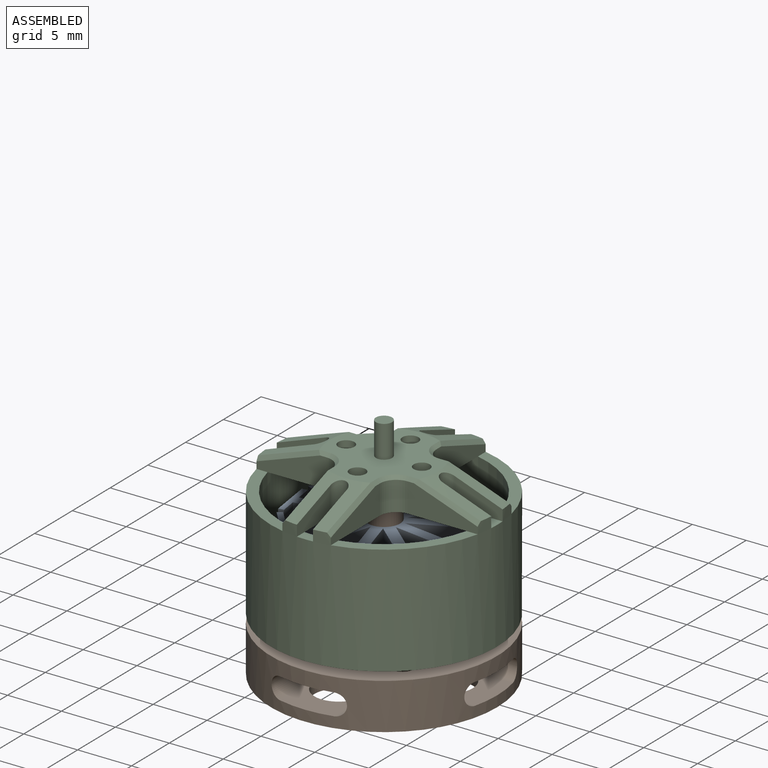
[diagram: assembled view]
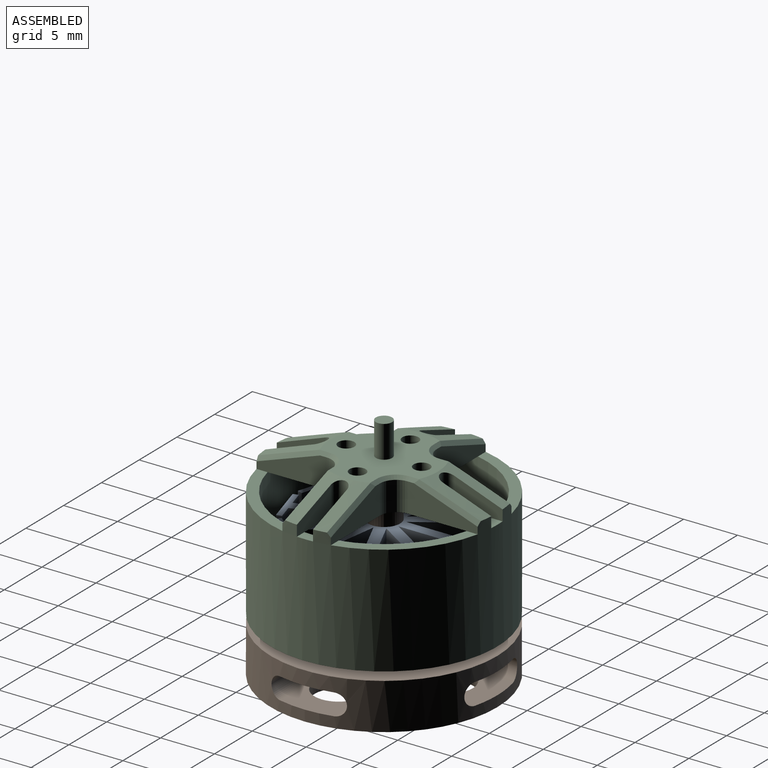
[diagram: assembled view, second angle]
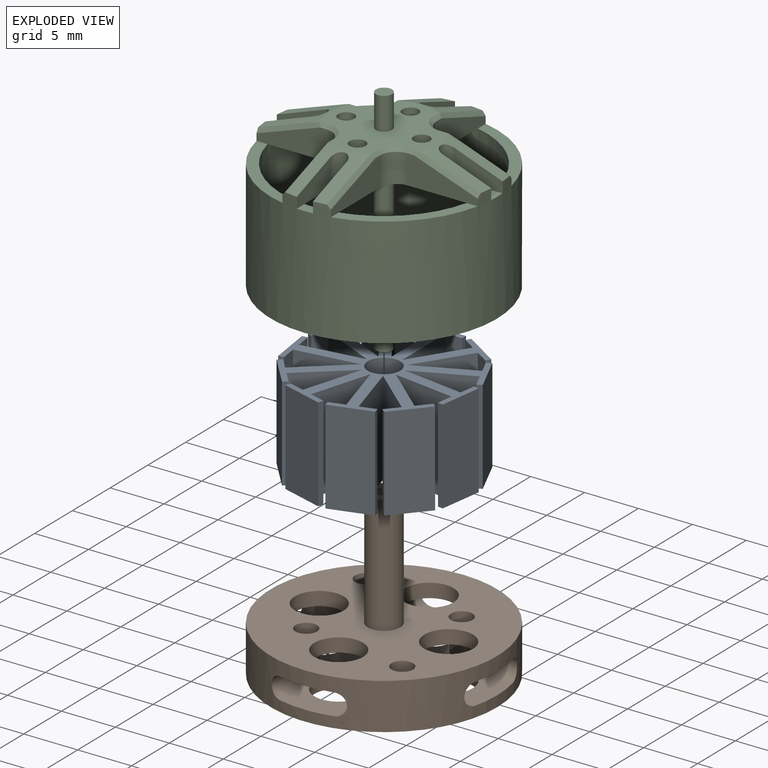
[diagram: exploded view]
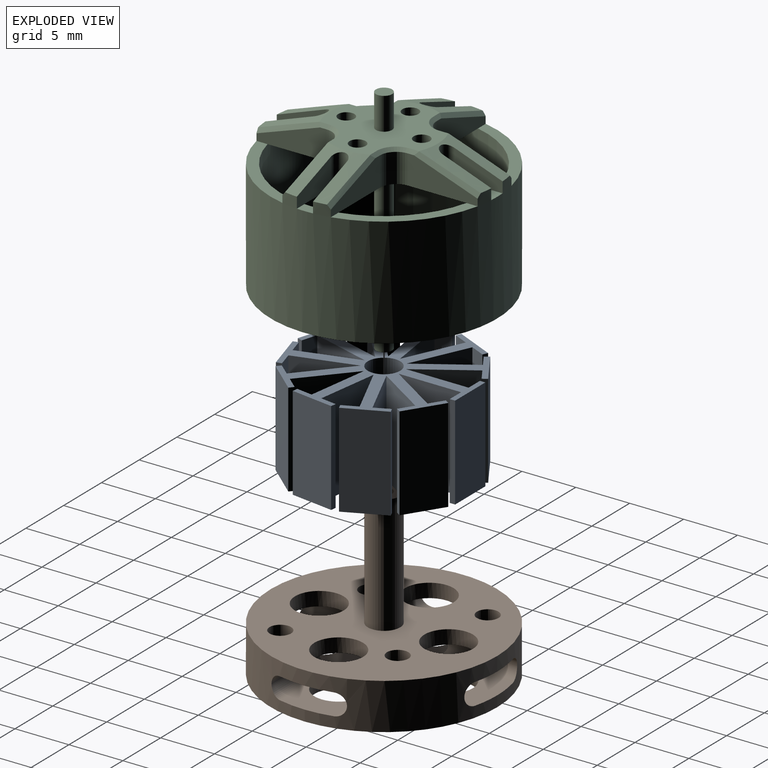
[diagram: exploded view, second angle]
ASSEMBLY  parts=3 mates=2
PART A: 80 faces, bbox 16.4x16.2x8.7 mm
  f0: plane 16.41x16.24mm, normal (0,0,-1), area 88.1mm2, adj f1,f2,f3,f4,f5,f6,f7,f8
  f1: plane 8.71x4mm, normal (0,1,0), area 34.8mm2, adj f0,f2,f77,f78
  f2: plane 8.71x0.5mm, normal (-1,0,0), area 4.4mm2, adj f0,f1,f3,f78
  f3: plane 8.71x1.5mm, normal (0,-1,0), area 13.1mm2, adj f0,f2,f4,f78
  f4: plane 8.71x5.8mm, normal (-1,0,0), area 50.5mm2, adj f0,f3,f5,f78
  f5: plane 8.71x4.88mm, normal (0.84,0.54,0), area 50.5mm2, adj f0,f4,f6,f78
  f6: plane 8.71x1.26mm, normal (0.54,-0.84,0), area 13.1mm2, adj f0,f5,f7,f78
  f7: plane 8.71x0.42mm, normal (0.84,0.54,0), area 4.4mm2, adj f0,f6,f8,f78
  f8: plane 8.71x3.37mm, normal (-0.54,0.84,0), area 34.8mm2, adj f0,f7,f9,f78
  f9: plane 8.71x0.42mm, normal (-0.84,-0.54,0), area 4.4mm2, adj f0,f8,f10,f78
  f10: plane 8.71x1.26mm, normal (0.54,-0.84,0), area 13.1mm2, adj f0,f9,f11,f78
  f11: plane 8.71x4.88mm, normal (-0.84,-0.54,0), area 50.5mm2, adj f0,f10,f12,f78
  f12: plane 8.71x5.27mm, normal (0.42,0.91,0), area 50.5mm2, adj f0,f11,f13,f78
  f13: plane 8.71x1.36mm, normal (0.91,-0.42,0), area 13.1mm2, adj f0,f12,f14,f78
  f14: plane 8.71x0.46mm, normal (0.42,0.91,0), area 4.4mm2, adj f0,f13,f15,f78
  f15: plane 8.71x3.64mm, normal (-0.91,0.42,0), area 34.8mm2, adj f0,f14,f16,f78
  f16: plane 8.71x0.46mm, normal (-0.42,-0.91,0), area 4.4mm2, adj f0,f15,f17,f78
  f17: plane 8.71x1.36mm, normal (0.91,-0.42,0), area 13.1mm2, adj f0,f16,f18,f78
  f18: plane 8.71x5.27mm, normal (-0.42,-0.91,0), area 50.5mm2, adj f0,f17,f19,f78
  f19: plane 8.71x5.74mm, normal (-0.14,0.99,0), area 50.5mm2, adj f0,f18,f20,f78
  f20: plane 8.71x1.48mm, normal (0.99,0.14,0), area 13.1mm2, adj f0,f19,f21,f78
  f21: plane 8.71x0.5mm, normal (-0.14,0.99,0), area 4.4mm2, adj f0,f20,f22,f78
  f22: plane 8.71x3.96mm, normal (-0.99,-0.14,0), area 34.8mm2, adj f0,f21,f23,f78
  f23: plane 8.71x0.5mm, normal (0.14,-0.99,0), area 4.4mm2, adj f0,f22,f24,f78
  f24: plane 8.71x1.48mm, normal (0.99,0.14,0), area 13.1mm2, adj f0,f23,f25,f78
  f25: plane 8.71x5.74mm, normal (0.14,-0.99,0), area 50.5mm2, adj f0,f24,f26,f78
  f26: plane 8.71x4.38mm, normal (-0.65,0.76,0), area 50.5mm2, adj f0,f25,f27,f78
  f27: plane 8.71x1.13mm, normal (0.76,0.65,0), area 13.1mm2, adj f0,f26,f28,f78
  f28: plane 8.71x0.38mm, normal (-0.65,0.76,0), area 4.4mm2, adj f0,f27,f29,f78
  f29: plane 8.71x3.02mm, normal (-0.76,-0.65,0), area 34.8mm2, adj f0,f28,f30,f78
  f30: plane 8.71x0.38mm, normal (0.65,-0.76,0), area 4.4mm2, adj f0,f29,f31,f78
  f31: plane 8.71x1.13mm, normal (0.76,0.65,0), area 13.1mm2, adj f0,f30,f32,f78
  f32: plane 8.71x4.38mm, normal (0.65,-0.76,0), area 50.5mm2, adj f0,f31,f33,f78
  f33: plane 8.71x5.56mm, normal (-0.96,0.28,0), area 50.5mm2, adj f0,f32,f34,f78
  f34: plane 8.71x1.44mm, normal (0.28,0.96,0), area 13.1mm2, adj f0,f33,f35,f78
  f35: plane 8.71x0.48mm, normal (-0.96,0.28,0), area 4.4mm2, adj f0,f34,f36,f78
  f36: plane 8.71x3.84mm, normal (-0.28,-0.96,0), area 34.8mm2, adj f0,f35,f37,f78
  f37: plane 8.71x0.48mm, normal (0.96,-0.28,0), area 4.4mm2, adj f0,f36,f38,f78
  f38: plane 8.71x1.44mm, normal (0.28,0.96,0), area 13.1mm2, adj f0,f37,f39,f78
  f39: plane 8.71x5.56mm, normal (0.96,-0.28,0), area 50.5mm2, adj f0,f38,f40,f78
  f40: plane 8.71x5.56mm, normal (-0.96,-0.28,0), area 50.5mm2, adj f0,f39,f41,f78
  f41: plane 8.71x1.44mm, normal (-0.28,0.96,0), area 13.1mm2, adj f0,f40,f42,f78
  f42: plane 8.71x0.48mm, normal (-0.96,-0.28,0), area 4.4mm2, adj f0,f41,f43,f78
  f43: plane 8.71x3.84mm, normal (0.28,-0.96,0), area 34.8mm2, adj f0,f42,f44,f78
  f44: plane 8.71x0.48mm, normal (0.96,0.28,0), area 4.4mm2, adj f0,f43,f45,f78
  f45: plane 8.71x1.44mm, normal (-0.28,0.96,0), area 13.1mm2, adj f0,f44,f46,f78
  f46: plane 8.71x5.56mm, normal (0.96,0.28,0), area 50.5mm2, adj f0,f45,f47,f78
  f47: plane 8.71x4.38mm, normal (-0.65,-0.76,0), area 50.5mm2, adj f0,f46,f48,f78
  f48: plane 8.71x1.13mm, normal (-0.76,0.65,0), area 13.1mm2, adj f0,f47,f49,f78
  f49: plane 8.71x0.38mm, normal (-0.65,-0.76,0), area 4.4mm2, adj f0,f48,f50,f78
  f50: plane 8.71x3.02mm, normal (0.76,-0.65,0), area 34.8mm2, adj f0,f49,f51,f78
  f51: plane 8.71x0.38mm, normal (0.65,0.76,0), area 4.4mm2, adj f0,f50,f52,f78
  f52: plane 8.71x1.13mm, normal (-0.76,0.65,0), area 13.1mm2, adj f0,f51,f53,f78
  f53: plane 8.71x4.38mm, normal (0.65,0.76,0), area 50.5mm2, adj f0,f52,f54,f78
  f54: plane 8.71x5.74mm, normal (-0.14,-0.99,0), area 50.5mm2, adj f0,f53,f55,f78
  f55: plane 8.71x1.48mm, normal (-0.99,0.14,0), area 13.1mm2, adj f0,f54,f56,f78
  f56: plane 8.71x0.5mm, normal (-0.14,-0.99,0), area 4.4mm2, adj f0,f55,f57,f78
  f57: plane 8.71x3.96mm, normal (0.99,-0.14,0), area 34.8mm2, adj f0,f56,f58,f78
  f58: plane 8.71x0.5mm, normal (0.14,0.99,0), area 4.4mm2, adj f0,f57,f59,f78
  f59: plane 8.71x1.48mm, normal (-0.99,0.14,0), area 13.1mm2, adj f0,f58,f60,f78
  f60: plane 8.71x5.74mm, normal (0.14,0.99,0), area 50.5mm2, adj f0,f59,f61,f78
  f61: plane 8.71x5.27mm, normal (0.42,-0.91,0), area 50.5mm2, adj f0,f60,f62,f78
  f62: plane 8.71x1.36mm, normal (-0.91,-0.42,0), area 13.1mm2, adj f0,f61,f63,f78
  f63: plane 8.71x0.46mm, normal (0.42,-0.91,0), area 4.4mm2, adj f0,f62,f64,f78
  f64: plane 8.71x3.64mm, normal (0.91,0.42,0), area 34.8mm2, adj f0,f63,f65,f78
  f65: plane 8.71x0.46mm, normal (-0.42,0.91,0), area 4.4mm2, adj f0,f64,f66,f78
  f66: plane 8.71x1.36mm, normal (-0.91,-0.42,0), area 13.1mm2, adj f0,f65,f67,f78
  f67: plane 8.71x5.27mm, normal (-0.42,0.91,0), area 50.5mm2, adj f0,f66,f68,f78
  f68: plane 8.71x4.88mm, normal (0.84,-0.54,0), area 50.5mm2, adj f0,f67,f69,f78
  f69: plane 8.71x1.26mm, normal (-0.54,-0.84,0), area 13.1mm2, adj f0,f68,f70,f78
  f70: plane 8.71x0.42mm, normal (0.84,-0.54,0), area 4.4mm2, adj f0,f69,f71,f78
  f71: plane 8.71x3.37mm, normal (0.54,0.84,0), area 34.8mm2, adj f0,f70,f72,f78
  f72: plane 8.71x0.42mm, normal (-0.84,0.54,0), area 4.4mm2, adj f0,f71,f73,f78
  f73: plane 8.71x1.26mm, normal (-0.54,-0.84,0), area 13.1mm2, adj f0,f72,f74,f78
  f74: plane 8.71x4.88mm, normal (-0.84,0.54,0), area 50.5mm2, adj f0,f73,f75,f78
  f75: plane 8.71x5.8mm, normal (1,0,0), area 50.5mm2, adj f0,f74,f76,f78
  f76: plane 8.71x1.5mm, normal (0,-1,0), area 13.1mm2, adj f0,f75,f77,f78
  f77: plane 8.71x0.5mm, normal (1,0,0), area 4.4mm2, adj f0,f1,f76,f78
  f78: plane 16.41x16.24mm, normal (0,0,1), area 88.1mm2, adj f1,f2,f3,f4,f5,f6,f7,f8
  f79: cylinder r=1.5mm len=8.71mm, axis (0,0,1), area 82.1mm2, adj f0,f78
PART B: 29 faces, bbox 21x21x15.3 mm
  f0: plane 3x3mm, normal (0,0,1), area 5.3mm2, adj f26,f28
  f1: plane 21x21mm, normal (0,0,1), area 263.1mm2, adj f13,f14,f16,f17,f19,f21,f23,f24
  f2: cylinder r=1mm len=7.7mm, axis (1,0,0), area 20mm2, adj f6,f9,f11,f13,f16
  f3: cylinder r=1mm len=7.7mm, axis (1,0,0), area 21.6mm2, adj f7,f9,f11,f13
  f4: plane 21x21mm, normal (0,0,-1), area 268.4mm2, adj f13,f15,f16,f18,f20,f22,f23,f24
  f5: cylinder r=1mm len=7.7mm, axis (0,1,0), area 21.6mm2, adj f9,f11,f12,f13
  f6: cylinder r=1mm len=7.7mm, axis (0,1,0), area 20mm2, adj f2,f9,f11,f13,f16
  f7: cylinder r=1mm len=7.7mm, axis (0,1,0), area 21.6mm2, adj f3,f9,f11,f13
  f8: cylinder r=1mm len=7.7mm, axis (0,1,0), area 20mm2, adj f9,f10,f11,f13,f24
  f9: plane 21x21mm, normal (0,0,1), area 117.6mm2, adj f2,f3,f5,f6,f7,f8,f10,f12
  f10: cylinder r=1mm len=7.7mm, axis (1,0,0), area 20mm2, adj f8,f9,f11,f13,f24
  f11: plane 21x21mm, normal (0,0,-1), area 117.6mm2, adj f2,f3,f5,f6,f7,f8,f10,f12
  f12: cylinder r=1mm len=7.7mm, axis (1,0,0), area 21.6mm2, adj f5,f9,f11,f13
  f13: cylinder r=10.5mm len=21mm, axis (0,0,-1), area 229.7mm2, adj f1,f2,f3,f4,f5,f6,f7,f8
  f14: cylinder r=2.25mm len=4.5mm, axis (0,0,-1), area 18.3mm2, adj f1,f11
  f15: cylinder r=2.25mm len=4.5mm, axis (0,0,-1), area 14.1mm2, adj f4,f9
  f16: cylinder r=1mm len=4.29mm, axis (0,0,-1), area 23.8mm2, adj f1,f2,f4,f6
  f17: cylinder r=2.25mm len=4.5mm, axis (0,0,-1), area 18.3mm2, adj f1,f11
  f18: cylinder r=2.25mm len=4.5mm, axis (0,0,-1), area 14.1mm2, adj f4,f9
  f19: cylinder r=2.25mm len=4.5mm, axis (0,0,-1), area 18.3mm2, adj f1,f11
  f20: cylinder r=2.25mm len=4.5mm, axis (0,0,-1), area 14.1mm2, adj f4,f9
  f21: cylinder r=2.25mm len=4.5mm, axis (0,0,-1), area 18.3mm2, adj f1,f11
  f22: cylinder r=2.25mm len=4.5mm, axis (0,0,-1), area 14.1mm2, adj f4,f9
  f23: cylinder r=1mm len=4.29mm, axis (0,0,-1), area 27mm2, adj f1,f4
  f24: cylinder r=1mm len=4.29mm, axis (0,0,-1), area 23.8mm2, adj f1,f4,f8,f10
  f25: cylinder r=1mm len=4.29mm, axis (0,0,-1), area 27mm2, adj f1,f4
  f26: cylinder r=0.75mm len=12.29mm, axis (0,0,1), area 57.9mm2, adj f0,f11
  f27: cylinder r=0.75mm len=1.5mm, axis (0,0,1), area 4.7mm2, adj f4,f9
  f28: cylinder r=1.5mm len=11mm, axis (0,0,1), area 103.7mm2, adj f0,f1
PART C: 69 faces, bbox 21.4x21.4x21.6 mm
  f0: plane 18.94x18.94mm, normal (0,0,-1), area 117.8mm2, adj f7,f8,f9,f11,f12,f13,f14,f15
  f1: plane 8.01x8.01mm, normal (0,0,1), area 11.2mm2, adj f3,f12,f13,f66
  f2: plane 1.5x1.03mm, normal (0,0,1), area 1.5mm2, adj f3,f31,f32,f66
  f3: cylinder r=10.5mm len=21mm, axis (0,0,-1), area 685.1mm2, adj f1,f2,f7,f8,f10,f12,f13,f15
  f4: plane 10.01x10.01mm, normal (0,0,1), area 54.8mm2, adj f5,f22,f38,f39,f40,f41,f42,f43
  f5: cylinder r=0.75mm len=3mm, axis (0,0,-1), area 14.1mm2, adj f4,f6
  f6: plane 1.5x1.5mm, normal (0,0,1), area 1.8mm2, adj f5
  f7: plane 6.61x2.8mm, normal (0,1,0), area 11.5mm2, adj f0,f3,f9,f10,f63,f64
  f8: plane 6.61x2.8mm, normal (-1,0,0), area 11.6mm2, adj f0,f3,f9,f10,f60,f61
  f9: cylinder r=1.5mm len=2.7mm, axis (0,0,1), area 6.4mm2, adj f0,f7,f8,f62
  f10: plane 8.01x8.01mm, normal (0,0,1), area 11.2mm2, adj f3,f7,f8,f66
  f11: cylinder r=1.5mm len=2.7mm, axis (0,0,1), area 6.4mm2, adj f0,f12,f13,f47
  f12: plane 6.61x2.8mm, normal (1,0,0), area 11.5mm2, adj f0,f1,f3,f11,f48,f49
  f13: plane 6.61x2.8mm, normal (0,1,0), area 11.6mm2, adj f0,f1,f3,f11,f45,f46
  f14: cylinder r=1.5mm len=2.7mm, axis (0,0,1), area 6.4mm2, adj f0,f15,f16,f52
  f15: plane 6.61x2.8mm, normal (0,-1,0), area 11.5mm2, adj f0,f3,f14,f17,f53,f54
  f16: plane 6.61x2.8mm, normal (1,0,0), area 11.6mm2, adj f0,f3,f14,f17,f50,f51
  f17: plane 8.01x8.01mm, normal (0,0,1), area 11.2mm2, adj f3,f15,f16,f66
  f18: cylinder r=1.5mm len=2.7mm, axis (0,0,1), area 6.4mm2, adj f0,f19,f20,f57
  f19: plane 6.61x2.8mm, normal (-1,0,0), area 11.5mm2, adj f0,f3,f18,f21,f58,f59
  f20: plane 6.61x2.8mm, normal (0,-1,0), area 11.6mm2, adj f0,f3,f18,f21,f55,f56
  f21: plane 8.01x8.01mm, normal (0,0,1), area 11.2mm2, adj f3,f19,f20,f66
  f22: cylinder r=0.75mm len=3mm, axis (0,0,1), area 14.1mm2, adj f0,f4
  f23: plane 4.47x2.62mm, normal (1,0,0), area 8.1mm2, adj f0,f3,f25,f26,f43
  f24: plane 4.47x2.62mm, normal (-1,0,0), area 8.1mm2, adj f0,f3,f25,f26,f43
  f25: cylinder r=0.75mm len=2.62mm, axis (0,0,1), area 6.2mm2, adj f0,f23,f24,f43
  f26: plane 1.5x1.03mm, normal (0,0,1), area 1.5mm2, adj f3,f23,f24,f66
  f27: plane 4.47x2.62mm, normal (0,-1,0), area 8.1mm2, adj f0,f3,f29,f30,f44
  f28: plane 4.47x2.62mm, normal (0,1,0), area 8.1mm2, adj f0,f3,f29,f30,f44
  f29: cylinder r=0.75mm len=2.62mm, axis (0,0,1), area 6.2mm2, adj f0,f27,f28,f44
  f30: plane 1.5x1.03mm, normal (0,0,1), area 1.5mm2, adj f3,f27,f28,f66
  f31: plane 4.47x2.62mm, normal (0,1,0), area 8.1mm2, adj f0,f2,f3,f33,f42
  f32: plane 4.47x2.62mm, normal (0,-1,0), area 8.1mm2, adj f0,f2,f3,f33,f42
  f33: cylinder r=0.75mm len=2.62mm, axis (0,0,1), area 6.2mm2, adj f0,f31,f32,f42
  f34: plane 4.47x2.62mm, normal (-1,0,0), area 8.1mm2, adj f0,f3,f36,f37,f41
  f35: plane 4.47x2.62mm, normal (1,0,0), area 8.1mm2, adj f0,f3,f36,f37,f41
  f36: cylinder r=0.75mm len=2.62mm, axis (0,0,1), area 6.2mm2, adj f0,f34,f35,f41
  f37: plane 1.5x1.03mm, normal (0,0,1), area 1.5mm2, adj f3,f34,f35,f66
  f38: cylinder r=0.75mm len=3mm, axis (0,0,1), area 14.1mm2, adj f0,f4
  f39: cylinder r=0.75mm len=3mm, axis (0,0,1), area 14.1mm2, adj f0,f4
  f40: cylinder r=0.75mm len=3mm, axis (0,0,1), area 14.1mm2, adj f0,f4
  f41: cone r=5.01mm half-angle=70deg, axis (0,0,-1), area 15mm2, adj f3,f4,f34,f35,f36,f50,f51,f58
  f42: cone r=5.01mm half-angle=70deg, axis (0,0,-1), area 15mm2, adj f3,f4,f31,f32,f33,f55,f56,f63
  f43: cone r=5.01mm half-angle=70deg, axis (0,0,-1), area 15mm2, adj f3,f4,f23,f24,f25,f48,f49,f60
  f44: cone r=5.01mm half-angle=70deg, axis (0,0,-1), area 15mm2, adj f3,f4,f27,f28,f29,f45,f46,f53
  f45: bspline ~6.62x2.61mm, area 2.9mm2, adj f3,f13,f44,f46
  f46: plane 0.9x0.31mm, normal (0,0.71,0.71), area 0.3mm2, adj f4,f13,f44,f45,f47
  f47: cone r=1.8mm half-angle=45deg, axis (0,0,1), area 1.1mm2, adj f4,f11,f46,f48
  f48: plane 0.9x0.31mm, normal (0.71,0,0.71), area 0.3mm2, adj f4,f12,f43,f47,f49
  f49: bspline ~6.03x2.41mm, area 2.9mm2, adj f3,f12,f43,f48
  f50: bspline ~6.62x2.61mm, area 2.9mm2, adj f3,f16,f41,f51
  f51: plane 0.9x0.31mm, normal (0.71,0,0.71), area 0.3mm2, adj f4,f16,f41,f50,f52
  f52: cone r=1.8mm half-angle=45deg, axis (0,0,1), area 1.1mm2, adj f4,f14,f51,f53
  f53: plane 0.9x0.31mm, normal (0,-0.71,0.71), area 0.3mm2, adj f4,f15,f44,f52,f54
  f54: bspline ~6.03x2.41mm, area 2.9mm2, adj f3,f15,f44,f53
  f55: bspline ~6.62x2.61mm, area 2.9mm2, adj f3,f20,f42,f56
  f56: plane 0.9x0.31mm, normal (0,-0.71,0.71), area 0.3mm2, adj f4,f20,f42,f55,f57
  f57: cone r=1.8mm half-angle=45deg, axis (0,0,1), area 1.1mm2, adj f4,f18,f56,f58
  f58: plane 0.9x0.31mm, normal (-0.71,0,0.71), area 0.3mm2, adj f4,f19,f41,f57,f59
  f59: bspline ~6.03x2.41mm, area 2.9mm2, adj f3,f19,f41,f58
  f60: bspline ~6.62x2.61mm, area 2.9mm2, adj f3,f8,f43,f61
  f61: plane 0.9x0.31mm, normal (-0.71,0,0.71), area 0.3mm2, adj f4,f8,f43,f60,f62
  f62: cone r=1.5mm half-angle=45deg, axis (0,0,1), area 1.1mm2, adj f4,f9,f61,f63
  f63: plane 0.9x0.31mm, normal (0,0.71,0.71), area 0.3mm2, adj f4,f7,f42,f62,f64
  f64: bspline ~6.03x2.41mm, area 2.9mm2, adj f3,f7,f42,f63
  f65: plane 21x21mm, normal (0,0,-1), area 62.8mm2, adj f3,f66
  f66: cylinder r=9.5mm len=19mm, axis (0,0,1), area 609.3mm2, adj f0,f1,f2,f10,f17,f21,f26,f30
  f67: cylinder r=0.75mm len=15.5mm, axis (0,0,1), area 73mm2, adj f0,f68
  f68: plane 1.5x1.5mm, normal (0,0,-1), area 1.8mm2, adj f67
PLACE A t=(17.15,8.23,-10.65)mm
PLACE B t=(17.15,8.23,-10.15)mm
PLACE C t=(17.15,8.23,-9.86)mm
MATE fastened A.f79 <-> B.f13  axis (0,0,-1) through (17.15,8.23,-5.86)mm
MATE fastened C.f3 <-> B.f13  axis (0,0,-1) through (17.15,8.23,5.14)mm
